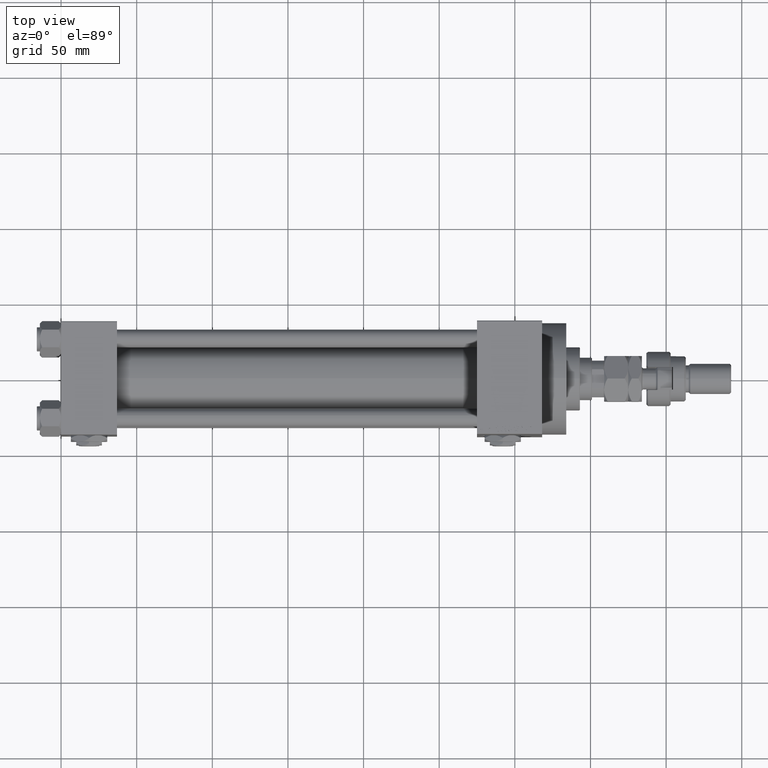
[diagram: clean part render]
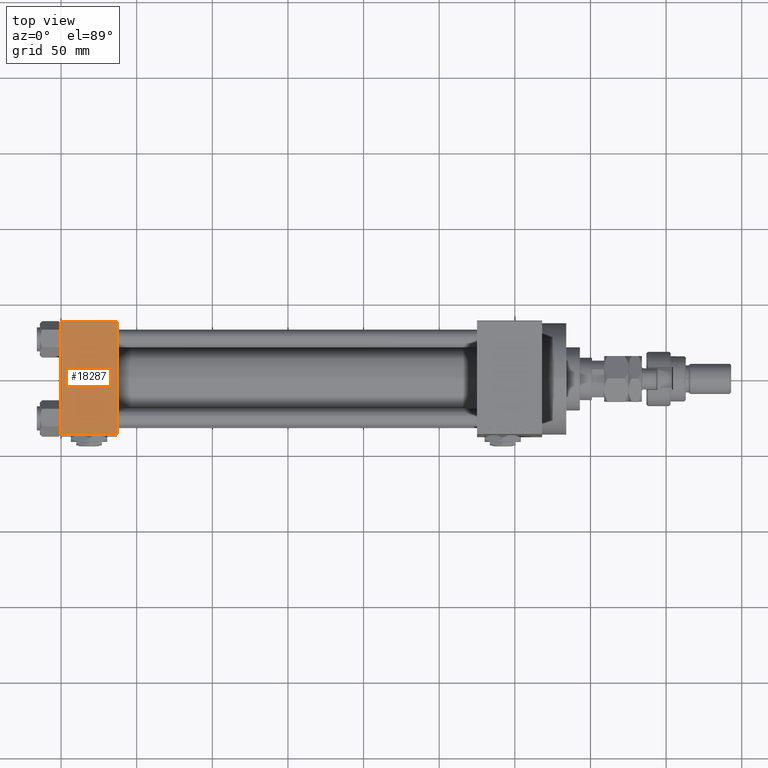
[diagram: same view with one face highlighted and labeled with its STEP entity id]
A machine part, top view. The second image highlights one B-rep face of the part: STEP entity #18287.
In plain terms, the highlighted planar face has unit normal (0, 0, -1).
Its self-contained STEP definition (entity closure, byte-faithful):
#272 = CARTESIAN_POINT ( 'NONE',  ( 37.00000000000000000, 37.49999999999999289, 37.50000000000000000 ) ) ;
#1305 = CARTESIAN_POINT ( 'NONE',  ( 37.00000000000000000, 37.49999999999999289, 37.50000000000000000 ) ) ;
#1436 = VERTEX_POINT ( 'NONE', #5804 ) ;
#2275 = EDGE_CURVE ( 'NONE', #48566, #13748, #42488, .T. ) ;
#3046 = EDGE_CURVE ( 'NONE', #8816, #1436, #9334, .T. ) ;
#5804 = CARTESIAN_POINT ( 'NONE',  ( 0.000000000000000000, 36.99999999999999289, 37.50000000000000000 ) ) ;
#6378 = CARTESIAN_POINT ( 'NONE',  ( 37.00000000000000000, -37.00000000000000711, 37.49999999999999289 ) ) ;
#6802 = ORIENTED_EDGE ( 'NONE', *, *, #3046, .T. ) ;
#8675 = VECTOR ( 'NONE', #25130, 1000.000000000000000 ) ;
#8816 = VERTEX_POINT ( 'NONE', #40894 ) ;
#9334 = LINE ( 'NONE', #24868, #8675 ) ;
#13748 = VERTEX_POINT ( 'NONE', #37407 ) ;
#14502 = ORIENTED_EDGE ( 'NONE', *, *, #2275, .T. ) ;
#15064 = VECTOR ( 'NONE', #43918, 1000.000000000000000 ) ;
#16598 = DIRECTION ( 'NONE',  ( 0.000000000000000000, -1.000000000000000000, -9.251858538542971581E-17 ) ) ;
#18287 = ADVANCED_FACE ( 'NONE', ( #44541 ), #37383, .F. ) ;
#21848 = EDGE_CURVE ( 'NONE', #8816, #13748, #33189, .T. ) ;
#23088 = LINE ( 'NONE', #39421, #15064 ) ;
#24148 = ORIENTED_EDGE ( 'NONE', *, *, #21848, .F. ) ;
#24480 = DIRECTION ( 'NONE',  ( 0.000000000000000000, 9.251858538542971581E-17, -1.000000000000000000 ) ) ;
#24868 = CARTESIAN_POINT ( 'NONE',  ( 0.000000000000000000, 36.99999999999999289, 37.50000000000000000 ) ) ;
#25130 = DIRECTION ( 'NONE',  ( -1.000000000000000000, 0.000000000000000000, 0.000000000000000000 ) ) ;
#28625 = AXIS2_PLACEMENT_3D ( 'NONE', #1305, #24480, #36593 ) ;
#30074 = EDGE_LOOP ( 'NONE', ( #40245, #14502, #24148, #6802 ) ) ;
#31521 = CARTESIAN_POINT ( 'NONE',  ( 0.000000000000000000, -37.00000000000000711, 37.49999999999999289 ) ) ;
#32828 = VECTOR ( 'NONE', #16598, 1000.000000000000000 ) ;
#33189 = LINE ( 'NONE', #272, #32828 ) ;
#34548 = DIRECTION ( 'NONE',  ( 1.000000000000000000, 0.000000000000000000, 0.000000000000000000 ) ) ;
#36593 = DIRECTION ( 'NONE',  ( 0.000000000000000000, 1.000000000000000000, 9.251858538542971581E-17 ) ) ;
#37383 = PLANE ( 'NONE',  #28625 ) ;
#37407 = CARTESIAN_POINT ( 'NONE',  ( 37.00000000000000000, -37.00000000000000711, 37.49999999999999289 ) ) ;
#39421 = CARTESIAN_POINT ( 'NONE',  ( 0.000000000000000000, 37.49999999999999289, 37.50000000000000000 ) ) ;
#40245 = ORIENTED_EDGE ( 'NONE', *, *, #45117, .T. ) ;
#40894 = CARTESIAN_POINT ( 'NONE',  ( 37.00000000000000000, 36.99999999999999289, 37.50000000000000000 ) ) ;
#42434 = VECTOR ( 'NONE', #34548, 1000.000000000000000 ) ;
#42488 = LINE ( 'NONE', #6378, #42434 ) ;
#43918 = DIRECTION ( 'NONE',  ( 0.000000000000000000, -1.000000000000000000, -9.251858538542971581E-17 ) ) ;
#44541 = FACE_OUTER_BOUND ( 'NONE', #30074, .T. ) ;
#45117 = EDGE_CURVE ( 'NONE', #1436, #48566, #23088, .T. ) ;
#48566 = VERTEX_POINT ( 'NONE', #31521 ) ;